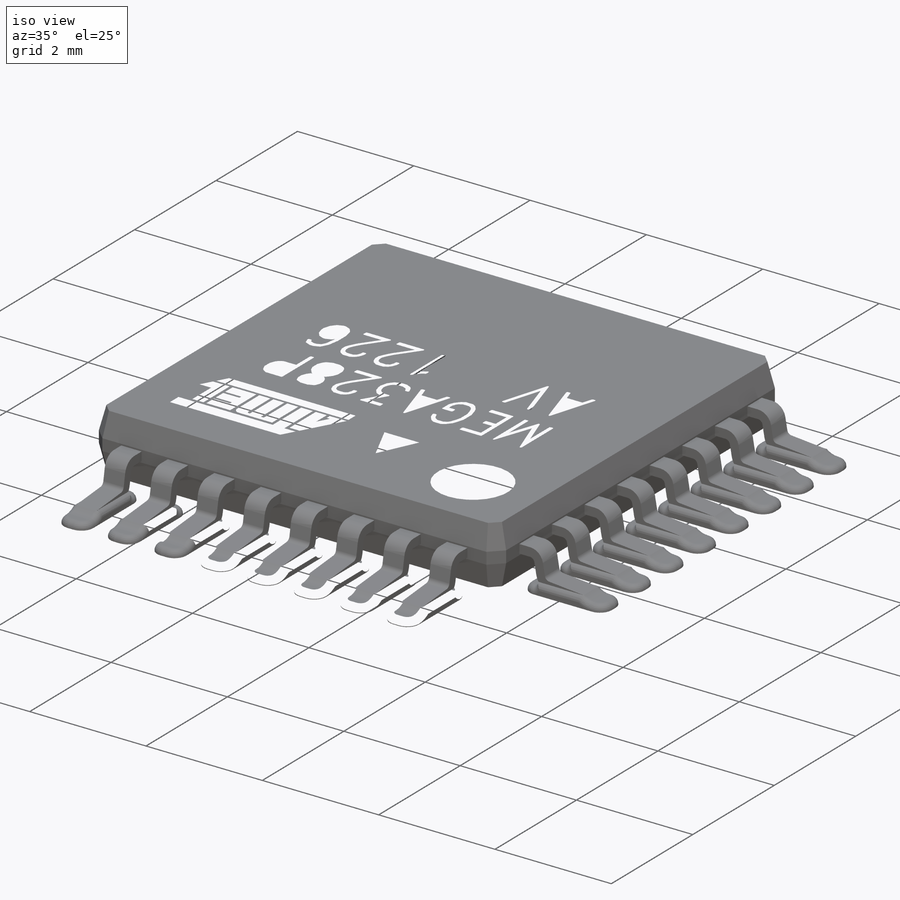
[diagram: iso view]
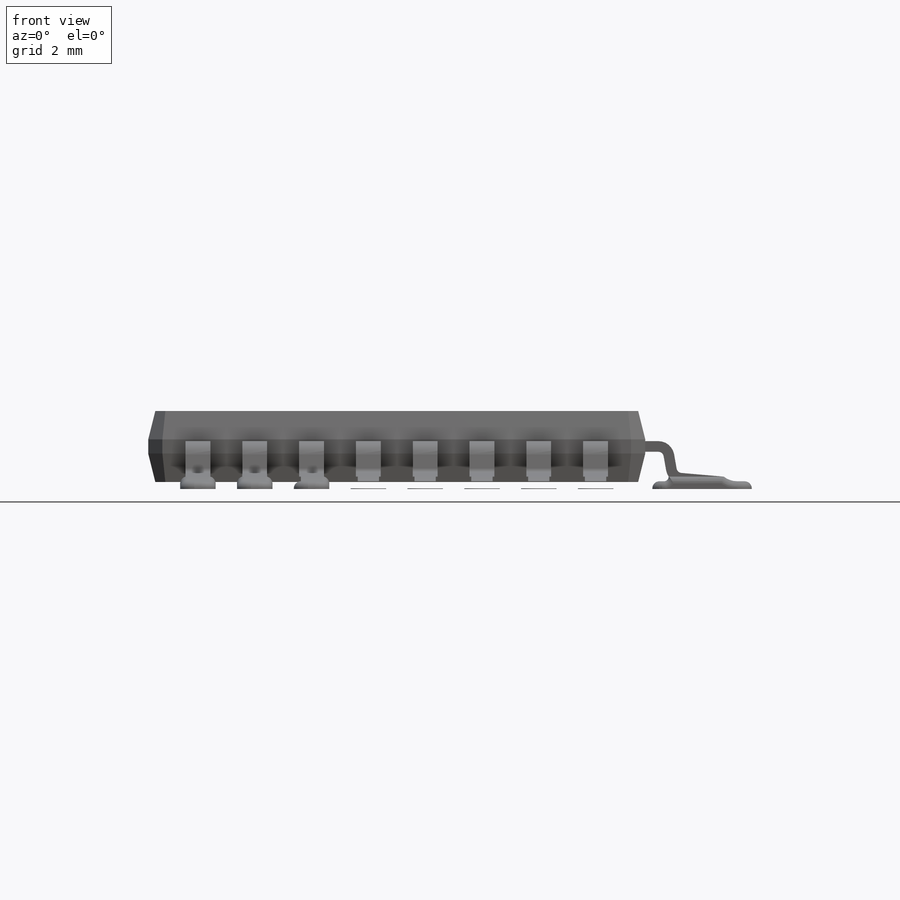
[diagram: front view]
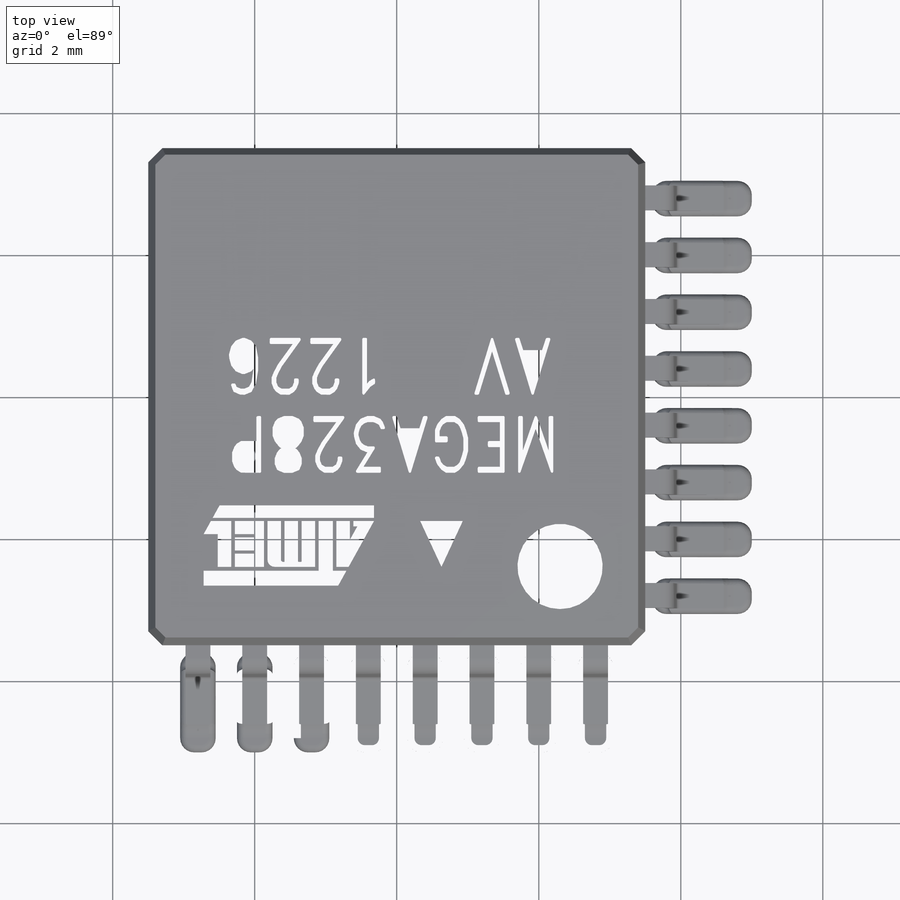
[diagram: top view]
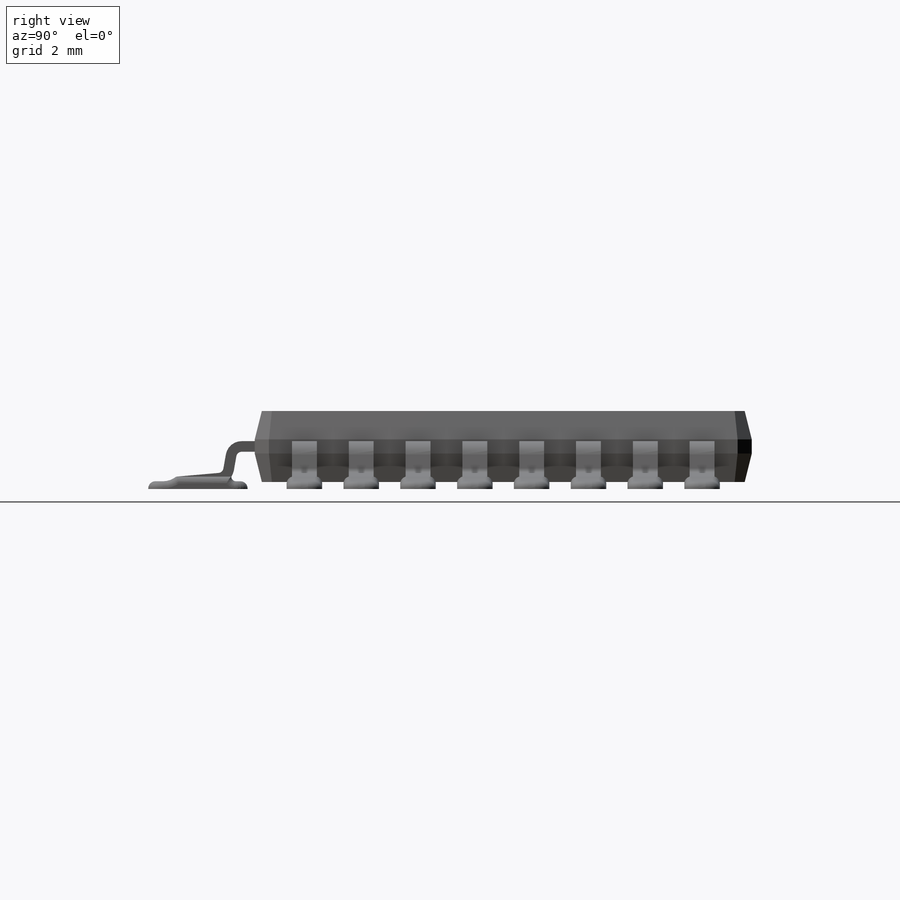
[diagram: right view]
SOLIDWORKS PART (.sldprt)
format: sldprt  version: not decoded by parser v0  size: 4,238,848 bytes
history: native  units: mm
features: sketch x9, plane x8, fillet x6, cut_extrude x4, extrude x3, chamfer x2, pattern_linear x2, mirror x2, material x1 (+13 scaffold rows collapsed)
feature tree (50):
  scaffold x13  (default folders/planes/origin — collapsed)
  material  "Material <sin especificar>"
  plane  "Plane1"
  sketch  "Sketch1"  dims[D1=3.5mm D2=7.0mm D3=3.5mm]
  extrude  "Boss-Extrude1"  Depth=1mm
  chamfer  "Chamfer1"  Distance=0.4mm
  chamfer  "Chamfer2"  Distance=0.1mm
  plane  "Plane8"  Offset=2.8mm
  sketch  "Sketch2"  dims[c1.D5=0.15mm c1.D1=4.5mm c1.D2=7.7mm c2.D2=5.0deg c2.D3=0.6mm c2.D4=0.5mm c2.D6=1.5mm c2.D1=4.5mm c2.D7=~0.266579mm c3.D7=80.0deg c3.D1=4.6mm c4.D1=0.35mm c4.D5=0.15mm c4.D6=1.0mm c4.D7=0.0001mm]
  plane  "Plane10"  Offset=0.1mm
  sketch  "Sketch6"  dims[D4=0.3mm D1=1.4mm D2=5.0mm D3=0.11mm]
  extrude  "Boss-Extrude3"  Depth=0.5mm
  fillet  "Fillet5"  Radius=0.2mm
  fillet  "Fillet6"  Radius=0.1mm
  fillet  "Fillet10"  Radius=0.1mm
  plane  "Plane3"
  plane  "Plane4"
  pattern_linear  "LPattern1"  Count1=8 Count2=1 Spacing1=0.8mm Spacing2=0.95mm
  plane  "Plane9"  Offset=2.8mm
  sketch  "Sketch3"  dims[c1.D5=0.15mm c1.D1=4.5mm c1.D2=0.5mm c1.D3=7.7mm c2.D3=5.0deg c2.D4=1.0mm c2.D6=0.6mm c2.D1=4.5mm c2.D7=~0.262605mm c3.D7=80.0deg c3.D1=4.6mm c4.D1=0.35mm c4.D5=0.15mm c4.D6=1.0mm c4.D7=0.0001mm]
  sketch  "Sketch7"  dims[D4=0.3mm D1=1.4mm D2=5.0mm D3=0.11mm]
  extrude  "Boss-Extrude4"  Depth=0.5mm
  fillet  "Fillet7"  Radius=0.2mm
  fillet  "Fillet8"  Radius=0.1mm
  fillet  "Fillet9"  Radius=0.1mm
  plane  "Plane6"
  plane  "Plane7"
  pattern_linear  "LPattern2"  Count1=8 Count2=1 Spacing1=0.8mm Spacing2=0.95mm
  mirror  "Mirror1"
  mirror  "Mirror2"
  sketch  "Sketch4"  dims[D2=1.2mm D1=2.3mm D3=0.4mm]
  cut_extrude  "Cut-Extrude1"  Depth=0.05mm
  sketch  "Sketch8"  dims[c1.D28=0.1mm c1.D29=0.03mm c1.D31=0.01mm c1.D36=0.015mm c1.D1=0.045mm c1.D2=0.045mm c1.D3=0.045mm c1.D4=0.055mm c1.D5=~3.143177mm c2.D5=61.0deg c2.D6=0.075mm c2.D7=0.055mm c2.D8=1.26mm c2.D9=1.2mm c2.D10=0.185mm c2.D11=0.185mm c2.D12=0.185mm c2.D13=0.21mm c2.D14=0.05mm c2.D15=0.05mm c2.D16=0.05mm c2.D17=0.05mm c2.D18=0.05mm c2.D19=0.05mm c2.D20=0.53mm c2.D21=0.2mm c2.D22=0.19mm c2.D23=0.19mm c2.D24=0.19mm c2.D25=0.41mm c2.D26=2.4mm c2.D27=2.48mm c2.D30=0.07mm c2.D32=0.19mm c2.D33=0.19mm c2.D34=0.05mm c2.D35=0.28mm c2.D37=0.6mm c2.D38=0.65mm c2.D40=0.2mm c3.D9=0.175mm c3.D40=2.265mm c3.D39=0.05mm]
  cut_extrude  "Cut-Extrude3"  Depth=0.01mm
  sketch  "Sketch9"  dims[D1=2.3mm D2=0.3mm]
  sketch  "Sketch10"  dims[D1=5.0mm D2=0.8mm]
  cut_extrude  "Cut-Extrude5"  Depth=0.01mm
  cut_extrude  "Cut-Extrude6"  Depth=0.01mm
decode coverage: 26 of 28 modeling features carry decoded parameters
note: ~ marks probable driven/reference dimensions
note: suppression state not decoded; provenance and decode notes live in map.json
